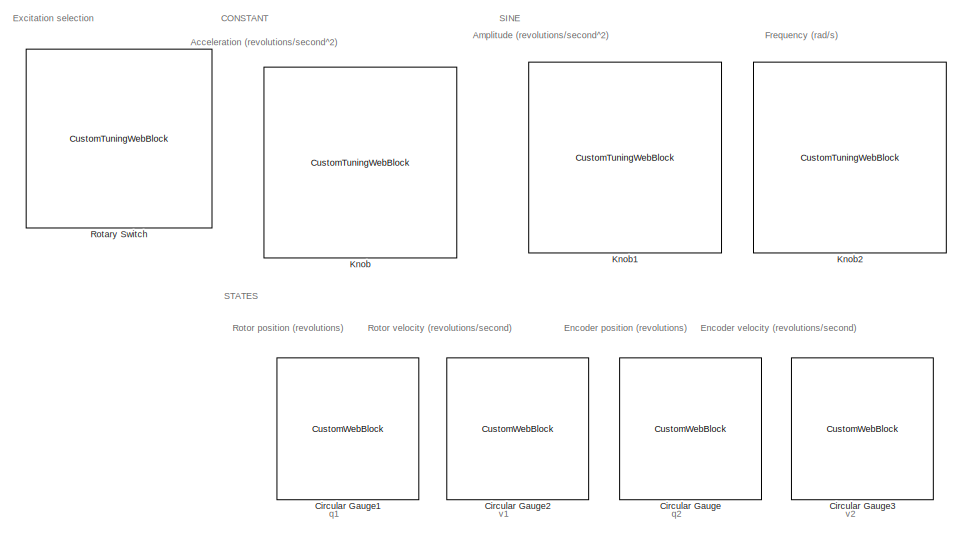
[diagram: root canvas - part 1/2, full width, top band]
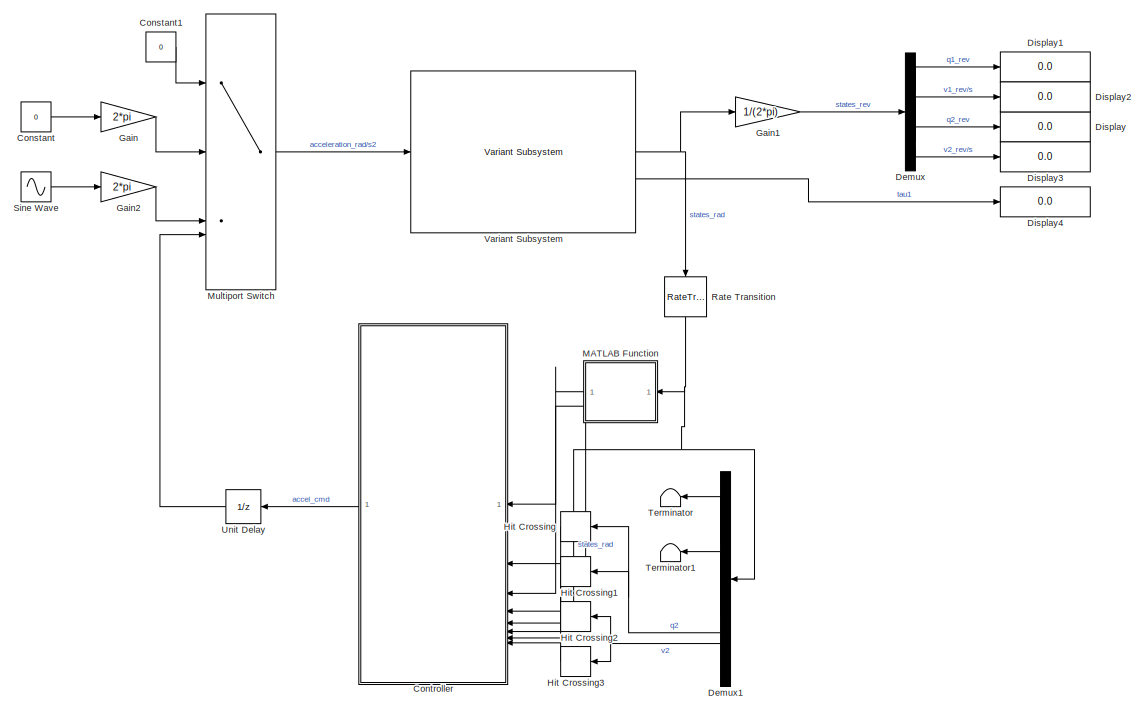
[diagram: root canvas - part 2/2, full width, bottom band]
MODEL slx_b9f4a571539f
KIND model
CONFIG AbsTol = auto
CONFIG EnableMultiTasking = on
CONFIG FixedStep = 0.001
CONFIG MaxStep = auto
CONFIG MinStep = auto
CONFIG PreLoadFcn = %define mechanical pars, init conditions\nrun RRpendulum_Parameters_num.m\n\n%% parameters moved to model workspace\n% sample time\n%T_SAMPLE = 0.001;\n\n%microsteps per turn of 200 step motor @ x16 microstepping\n%STEPS_PER_TURN = 3200; \n\n%encoder counts per turn\n%COUNTS_PER_TURN = 2400;
CONFIG RelTol = 1e-3
CONFIG SampleTimeConstraint = Unconstrained
CONFIG SolverName = FixedStepAuto
CONFIG StartTime = 0.0
CONFIG StopTime = inf
WORKSPACE source: mxarray member
WORKSPACE COUNTS_PER_TURN = 2400
WORKSPACE STEPS_PER_TURN = 3200
WORKSPACE T_SAMPLE = 0.001
BLOCK [CustomWebBlock] Circular Gauge
  Configuration = {"components":[{"name":"CircularScaleComponent","settings":{"bounds":{"max":1,"min":-1,"tickInterval":"auto"},"direction":"cw","flipLimits":0,"innerRadius":0.75,"internalTickHeightScaleFactor":1,"labelColor":[255,255,200],"labelFont":{"font":"Arial","fontSize":12},"labelRadius":0.528,"labelTransparency":1,"minorTickHeightScaleFactor":0.2,"needleImage":{"size":[200,50],"src":"data:image\/svg+xml;ba...<+12910ch>
  LabelPosition = Hide
  ShowInitialText = on
BLOCK [CustomWebBlock] Circular Gauge1
  Configuration = {"components":[{"name":"CircularScaleComponent","settings":{"bounds":{"max":1,"min":-1,"tickInterval":"auto"},"direction":"cw","flipLimits":0,"innerRadius":0.75,"internalTickHeightScaleFactor":1,"labelColor":[255,255,200],"labelFont":{"font":"Arial","fontSize":12},"labelRadius":0.528,"labelTransparency":1,"minorTickHeightScaleFactor":0.2,"needleImage":{"size":[200,50],"src":"data:image\/svg+xml;ba...<+12910ch>
  LabelPosition = Hide
  ShowInitialText = on
BLOCK [CustomWebBlock] Circular Gauge2
  Configuration = {"components":[{"name":"CircularScaleComponent","settings":{"bounds":{"max":4,"min":-4,"tickInterval":"auto"},"direction":"cw","flipLimits":0,"innerRadius":0.75,"internalTickHeightScaleFactor":1,"labelColor":[255,255,200],"labelFont":{"font":"Arial","fontSize":12},"labelRadius":0.528,"labelTransparency":1,"minorTickHeightScaleFactor":0.2,"needleImage":{"size":[200,50],"src":"data:image\/svg+xml;ba...<+12910ch>
  LabelPosition = Hide
  ShowInitialText = on
BLOCK [CustomWebBlock] Circular Gauge3
  Configuration = {"components":[{"name":"CircularScaleComponent","settings":{"bounds":{"max":4,"min":-4,"tickInterval":"auto"},"direction":"cw","flipLimits":0,"innerRadius":0.75,"internalTickHeightScaleFactor":1,"labelColor":[255,255,200],"labelFont":{"font":"Arial","fontSize":12},"labelRadius":0.528,"labelTransparency":1,"minorTickHeightScaleFactor":0.2,"needleImage":{"size":[200,50],"src":"data:image\/svg+xml;ba...<+12910ch>
  LabelPosition = Hide
  ShowInitialText = on
BLOCK [Constant] Constant
  Value = 0
BLOCK [Constant] Constant1
  OutDataTypeStr = uint8
  Value = 0
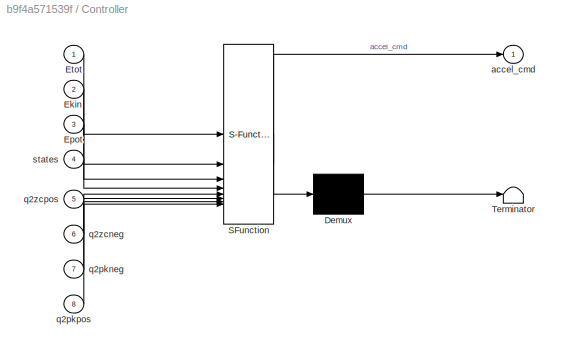
BLOCK [SubSystem] Controller
  ErrorFcn = Stateflow.Translate.translate
  PermitHierarchicalResolution = ExplicitOnly
  SFBlockType = Chart
  TreatAsAtomicUnit = on
BLOCK [Demux] Controller/ Demux 
  Outputs = 1
BLOCK [S-Function] Controller/ SFunction 
  EnableBusSupport = off
  FunctionName = sf_sfun
  Parameters = K,epsilon,g_num,l_num,m_num,r_num
  PortCounts = [8 2]
  SFcnIsStateOwnerBlock = off
  SFunctionDeploymentMode = off
  Tag = Stateflow S-Function 3
BLOCK [Terminator] Controller/ Terminator 
BLOCK [Inport] Controller/Ekin
  Port = 2
BLOCK [Inport] Controller/Epot
  Port = 3
BLOCK [Inport] Controller/Etot
BLOCK [Outport] Controller/accel_cmd
BLOCK [Inport] Controller/q2pkneg
  Port = 7
BLOCK [Inport] Controller/q2pkpos
  Port = 8
BLOCK [Inport] Controller/q2zcneg
  Port = 6
BLOCK [Inport] Controller/q2zcpos
  Port = 5
BLOCK [Inport] Controller/states
  Port = 4
BLOCK [Demux] Demux
BLOCK [Demux] Demux1
BLOCK [Display] Display
  Decimation = 1
BLOCK [Display] Display1
  Decimation = 1
BLOCK [Display] Display2
  Decimation = 1
BLOCK [Display] Display3
  Decimation = 1
BLOCK [Display] Display4
  Decimation = 1
BLOCK [Gain] Gain
  Gain = 2*pi
BLOCK [Gain] Gain1
  Gain = 1/(2*pi)
BLOCK [Gain] Gain2
  Gain = 2*pi
BLOCK [HitCross] Hit Crossing
  HitCrossingDirection = rising
BLOCK [HitCross] Hit Crossing1
  HitCrossingDirection = falling
BLOCK [HitCross] Hit Crossing2
  HitCrossingDirection = rising
BLOCK [HitCross] Hit Crossing3
  HitCrossingDirection = falling
BLOCK [CustomTuningWebBlock] Knob
  Configuration = {"components":[{"name":"CircularScaleComponent","settings":{"bounds":{"max":2,"min":-2,"tickInterval":"auto"},"direction":"cw","flipLimits":0,"innerRadius":0.6636618227670849,"internalTickHeightScaleFactor":1,"labelColor":[255,255,200],"labelFont":{"font":"Arial","fontSize":12},"labelRadius":0.79,"labelTransparency":1,"minorTickHeightScaleFactor":0.2,"needleImage":{"size":[150,150],"src":"data:ima...<+43940ch>
  LabelPosition = Hide
  ShowInitialText = on
BLOCK [CustomTuningWebBlock] Knob1
  Configuration = {"components":[{"name":"CircularScaleComponent","settings":{"bounds":{"max":5,"min":0,"tickInterval":"auto"},"direction":"cw","flipLimits":0,"innerRadius":0.6636618227670849,"internalTickHeightScaleFactor":1,"labelColor":[255,255,200],"labelFont":{"font":"Arial","fontSize":12},"labelRadius":0.79,"labelTransparency":1,"minorTickHeightScaleFactor":0.2,"needleImage":{"size":[150,150],"src":"data:imag...<+43937ch>
  LabelPosition = Hide
  ShowInitialText = on
BLOCK [CustomTuningWebBlock] Knob2
  Configuration = {"components":[{"name":"CircularScaleComponent","settings":{"bounds":{"max":31,"min":0,"tickInterval":"auto"},"direction":"cw","flipLimits":0,"innerRadius":0.6636618227670849,"internalTickHeightScaleFactor":1,"labelColor":[255,255,200],"labelFont":{"font":"Arial","fontSize":12},"labelRadius":0.79,"labelTransparency":1,"minorTickHeightScaleFactor":0.2,"needleImage":{"size":[150,150],"src":"data:ima...<+43940ch>
  LabelPosition = Hide
  ShowInitialText = on
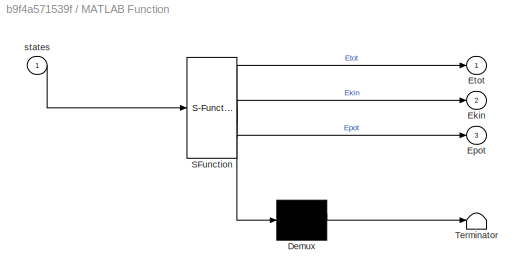
BLOCK [SubSystem] MATLAB Function
  ErrorFcn = Stateflow.Translate.translate
  PermitHierarchicalResolution = ExplicitOnly
  SFBlockType = MATLAB Function
  TreatAsAtomicUnit = on
BLOCK [Demux] MATLAB Function/ Demux 
  Outputs = 1
BLOCK [S-Function] MATLAB Function/ SFunction 
  EnableBusSupport = off
  FunctionName = sf_sfun
  Parameters = g_num,l_num,m_num,r_num
  PortCounts = [1 4]
  SFcnIsStateOwnerBlock = off
  SFunctionDeploymentMode = off
  Tag = Stateflow S-Function 2
BLOCK [Terminator] MATLAB Function/ Terminator 
BLOCK [Outport] MATLAB Function/Ekin
  Port = 2
BLOCK [Outport] MATLAB Function/Epot
  Port = 3
BLOCK [Outport] MATLAB Function/Etot
BLOCK [Inport] MATLAB Function/states
BLOCK [MultiPortSwitch] Multiport Switch
  DataPortOrder = Zero-based contiguous
  InputSameDT = off
  SaturateOnIntegerOverflow = off
  zeroidx = on
BLOCK [RateTransition] Rate Transition
  NameLocation = left
  OutPortSampleTime = 0.001
BLOCK [CustomTuningWebBlock] Rotary Switch
  Configuration = {"components":[{"name":"RotarySwitchComponent","settings":{"arcAngle":300,"arcAngleOffset":120,"handle":{"size":[150,150],"src":"data:image\/svg+xml;base64,PHN2ZyBpZD0iTGF5ZXJfMSIgZGF0YS1uYW1lPSJMYXllciAxIiB4bWxucz0iaHR0cDovL3d3dy53My5vcmcvMjAwMC9zdmciIHhtbG5zOnhsaW5rPSJodHRwOi8vd3d3LnczLm9yZy8xOTk5L3hsaW5rIiB2aWV3Qm94PSIwIDAgMTIxIDEyMSI+PGRlZnM+PHN0eWxlPi5jbHMtMXtmaWxsOnVybCgjbGluZWFyLWdyYWRpZW50...<+18951ch>
  LabelPosition = Hide
  ShowInitialText = on
BLOCK [Sin] Sine Wave
  Amplitude = 3.028518244221481
  Frequency = 8.664562564826873
  Phase = pi/2
  SampleTime = T_SAMPLE
BLOCK [Terminator] Terminator
BLOCK [Terminator] Terminator1
BLOCK [UnitDelay] Unit Delay
  HasFrameUpgradeWarning = on
  SampleTime = -1
BLOCK [Reference] Variant Subsystem  REF=digtwin_labo_lib/Variant Subsystem  (lib defined in slx_912b749dec0a)
  SourceBlock = digtwin_labo_lib/Variant Subsystem
  SourceType = SubSystem
ANNOTATION (root): Acceleration (revolutions/second^2)
ANNOTATION (root): Amplitude (revolutions/second^2)
ANNOTATION (root): Frequency (rad/s)
ANNOTATION (root): Excitation selection
ANNOTATION (root): q1
ANNOTATION (root): q2
ANNOTATION (root): v1
ANNOTATION (root): v2
ANNOTATION (root): CONSTANT
ANNOTATION (root): Encoder position (revolutions)
ANNOTATION (root): Encoder velocity (revolutions/second)
ANNOTATION (root): Rotor position (revolutions)
ANNOTATION (root): Rotor velocity (revolutions/second)
ANNOTATION (root): SINE
ANNOTATION (root): STATES
LINE Constant1:1 -> Multiport Switch:1
LINE Constant:1 -> Gain:1
LINE Controller:1 -> Unit Delay:1
LINE Demux1:1 -> Terminator:1
LINE Demux1:2 -> Terminator1:1
NET Demux1:3 -> Hit Crossing1:1, Hit Crossing:1
NET Demux1:4 -> Hit Crossing2:1, Hit Crossing3:1
LINE Demux:1 -> Display1:1
LINE Demux:2 -> Display2:1
LINE Demux:3 -> Display:1
LINE Demux:4 -> Display3:1
LINE Gain1:1 -> Demux:1
LINE Gain2:1 -> Multiport Switch:3
LINE Gain:1 -> Multiport Switch:2
LINE Hit Crossing1:1 -> Controller:6
LINE Hit Crossing2:1 -> Controller:7
LINE Hit Crossing3:1 -> Controller:8
LINE Hit Crossing:1 -> Controller:5
LINE MATLAB Function:1 -> Controller:1
LINE MATLAB Function:2 -> Controller:2
LINE MATLAB Function:3 -> Controller:3
LINE Multiport Switch:1 -> Variant Subsystem:1
NET Rate Transition:1 -> Controller:4, Demux1:1, MATLAB Function:1
LINE Sine Wave:1 -> Gain2:1
LINE Unit Delay:1 -> Multiport Switch:4
NET Variant Subsystem:1 -> Gain1:1, Rate Transition:1
LINE Variant Subsystem:2 -> Display4:1
note: NET lines group one-source signal fan-out (src -> all destinations, sorted); 1:1 wires keep LINE
CHART Controller states=8 transitions=8
  STATE_LABEL 'Startup\naccel_cmd = 2*pi/3200; % to get 1 step/s^2'
  STATE_LABEL 'Startup1\naccel_cmd = 0;'
  STATE_LABEL 'Swingup\nen:\naccelpulseampl = 30; %rad/s\naccelpulsetime = 0.1; %s\ndu:\naccel_cmd = 0;\n'
  STATE_LABEL 'accelposstart\nen,du:\naccel_cmd = accelpulseampl;'
  STATE_LABEL 'decelnegstart\nen,du:\naccel_cmd = -1*accelpulseampl;'
  STATE_LABEL 'stoppedpos\n'
  STATE_LABEL 'stoppedpos1\n'
  STATE_LABEL 'after(accelpulsetime,sec)'
  STATE_LABEL 'after(accelpulsetime,sec)'
  STATE_LABEL 'accelposstart\nen,du:\naccel_cmd = accelpulseampl;'
  STATE_LABEL 'decelnegstart\nen,du:\naccel_cmd = -1*accelpulseampl;'
  STATE_LABEL 'stoppedpos\n'
  STATE_LABEL 'stoppedpos1\n'
  STATE_LABEL 'Stabilize\nen:\nif (abs(pi-states(3)) < abs(-pi-states(3)))\n    ref_state = [0;0;pi;0];\nelse\n    ref_state = [0;0;-pi;0];\nend\nen,du:\naccel_cmd=K*(ref_state-states);\n'
CHART MATLAB Function states=1 transitions=1
  STATE_LABEL 'eML_blk_kernel()'
  STATE_LABEL 'SCRIPT:\nfunction [Etot,Ekin,Epot]=calc_energy(states, g_num, m_num, r_num, l_num)\n%q1=states(1);\nv1=states(2);\nq2=states(3);\nv2=states(4);\n\nEkin=l_num^2*m_num*(v1^2 + v2^2)/2 + m_num*r_num^2*v1^2/2 - l_num^2*m_num*cos(q2)^2*v1^2/2 + l_num*m_num*r_num*cos(q2)*v2*v1;\nEpot = -g_num*l_num*m_num*cos(q2)+m_num*g_num*l_num;\nEtot = Ekin+Epot;\n'
CHART  states=0 transitions=0
CHART  states=0 transitions=0
